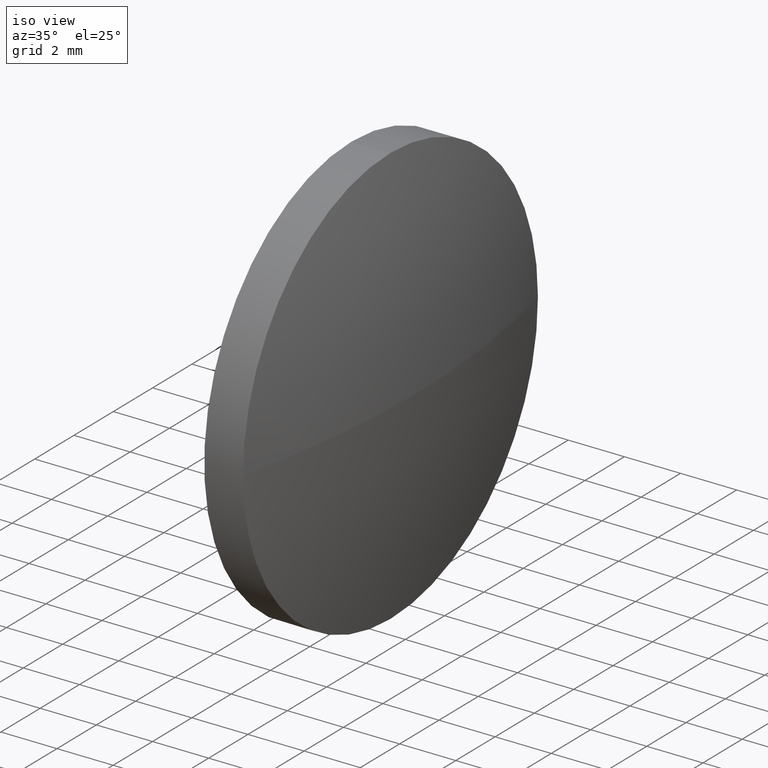
[diagram: clean part render]
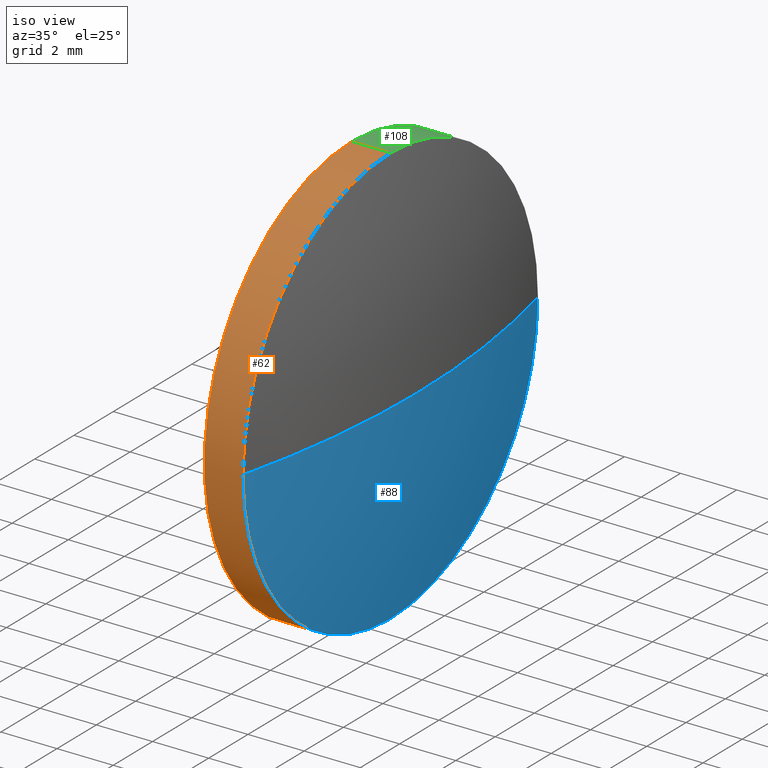
[diagram: same view with three faces highlighted in distinct colors, each labeled with its STEP entity id]
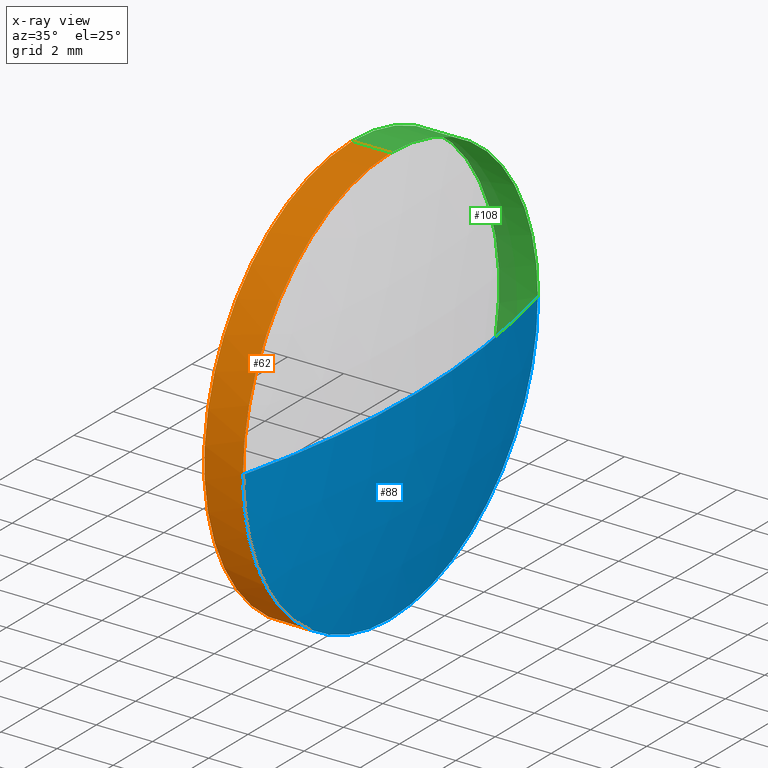
[diagram: x-ray of the same camera — body ghosted, the three highlighted faces saturated]
A machine part, iso view with three faces highlighted in distinct colors.
The next image is the same camera in x-ray (body ghosted, the three faces saturated) — at least one of them is partly hidden behind the body in this view.
Their STEP definitions:

[orange] entity #62 — the highlighted cylindrical surface (partial cylindrical patch) has radius 7.5 mm, axis along (-1, -0, -0).
#9 = DIRECTION ( 'NONE',  ( -1.000000000000000000, -0.0000000000000000000, -0.0000000000000000000 ) ) ;
#17 = ORIENTED_EDGE ( 'NONE', *, *, #63, .F. ) ;
#22 = DIRECTION ( 'NONE',  ( 0.0000000000000000000, 0.0000000000000000000, 1.000000000000000000 ) ) ;
#26 = DIRECTION ( 'NONE',  ( -1.000000000000000000, -0.0000000000000000000, -0.0000000000000000000 ) ) ;
#31 = LINE ( 'NONE', #120, #157 ) ;
#35 = CARTESIAN_POINT ( 'NONE',  ( 561.2280030828359300, 62.85047557403811400, 0.0000000000000000000 ) ) ;
#36 = CARTESIAN_POINT ( 'NONE',  ( 559.8480030828359300, 70.35047557403802900, 7.499999999999992900 ) ) ;
#38 = DIRECTION ( 'NONE',  ( 0.0000000000000000000, 0.0000000000000000000, 1.000000000000000000 ) ) ;
#40 = AXIS2_PLACEMENT_3D ( 'NONE', #42, #86, #38 ) ;
#42 = CARTESIAN_POINT ( 'NONE',  ( 561.2280030828359300, 70.35047557403802900, 0.0000000000000000000 ) ) ;
#46 = ORIENTED_EDGE ( 'NONE', *, *, #124, .T. ) ;
#49 = EDGE_CURVE ( 'NONE', #57, #90, #131, .T. ) ;
#50 = ORIENTED_EDGE ( 'NONE', *, *, #49, .F. ) ;
#52 = VECTOR ( 'NONE', #183, 1000.000000000000000 ) ;
#53 = CARTESIAN_POINT ( 'NONE',  ( 559.8480030828359300, 70.35047557403802900, 0.0000000000000000000 ) ) ;
#54 = CARTESIAN_POINT ( 'NONE',  ( 557.8048355037705100, 70.35047557403802900, -7.499999999999992900 ) ) ;
#56 = DIRECTION ( 'NONE',  ( 0.0000000000000000000, 0.0000000000000000000, 1.000000000000000000 ) ) ;
#57 = VERTEX_POINT ( 'NONE', #147 ) ;
#62 = ADVANCED_FACE ( 'NONE', ( #167 ), #87, .T. ) ;
#63 = EDGE_CURVE ( 'NONE', #90, #98, #140, .T. ) ;
#73 = CIRCLE ( 'NONE', #168, 7.499999999999992900 ) ;
#77 = AXIS2_PLACEMENT_3D ( 'NONE', #53, #9, #130 ) ;
#80 = VERTEX_POINT ( 'NONE', #35 ) ;
#86 = DIRECTION ( 'NONE',  ( -1.000000000000000000, -0.0000000000000000000, -0.0000000000000000000 ) ) ;
#87 = CYLINDRICAL_SURFACE ( 'NONE', #89, 7.499999999999992900 ) ;
#89 = AXIS2_PLACEMENT_3D ( 'NONE', #146, #100, #22 ) ;
#90 = VERTEX_POINT ( 'NONE', #133 ) ;
#96 = VERTEX_POINT ( 'NONE', #132 ) ;
#98 = VERTEX_POINT ( 'NONE', #36 ) ;
#100 = DIRECTION ( 'NONE',  ( -1.000000000000000000, -0.0000000000000000000, -0.0000000000000000000 ) ) ;
#111 = EDGE_CURVE ( 'NONE', #57, #80, #73, .T. ) ;
#120 = CARTESIAN_POINT ( 'NONE',  ( 557.8048355037705100, 70.35047557403802900, 7.499999999999992900 ) ) ;
#122 = DIRECTION ( 'NONE',  ( -1.000000000000000000, -0.0000000000000000000, -0.0000000000000000000 ) ) ;
#124 = EDGE_CURVE ( 'NONE', #96, #98, #31, .T. ) ;
#128 = CIRCLE ( 'NONE', #40, 7.499999999999992900 ) ;
#130 = DIRECTION ( 'NONE',  ( 0.0000000000000000000, 0.0000000000000000000, 1.000000000000000000 ) ) ;
#131 = LINE ( 'NONE', #54, #52 ) ;
#132 = CARTESIAN_POINT ( 'NONE',  ( 561.2280030828359300, 70.35047557403802900, 7.499999999999992900 ) ) ;
#133 = CARTESIAN_POINT ( 'NONE',  ( 559.8480030828359300, 70.35047557403802900, -7.499999999999992900 ) ) ;
#137 = CARTESIAN_POINT ( 'NONE',  ( 561.2280030828359300, 70.35047557403802900, 0.0000000000000000000 ) ) ;
#138 = EDGE_LOOP ( 'NONE', ( #50, #174, #165, #46, #17 ) ) ;
#140 = CIRCLE ( 'NONE', #77, 7.499999999999992900 ) ;
#146 = CARTESIAN_POINT ( 'NONE',  ( 557.8048355037705100, 70.35047557403802900, 0.0000000000000000000 ) ) ;
#147 = CARTESIAN_POINT ( 'NONE',  ( 561.2280030828359300, 70.35047557403802900, -7.499999999999992900 ) ) ;
#157 = VECTOR ( 'NONE', #26, 1000.000000000000000 ) ;
#165 = ORIENTED_EDGE ( 'NONE', *, *, #170, .T. ) ;
#167 = FACE_OUTER_BOUND ( 'NONE', #138, .T. ) ;
#168 = AXIS2_PLACEMENT_3D ( 'NONE', #137, #122, #56 ) ;
#170 = EDGE_CURVE ( 'NONE', #80, #96, #128, .T. ) ;
#174 = ORIENTED_EDGE ( 'NONE', *, *, #111, .T. ) ;
#183 = DIRECTION ( 'NONE',  ( -1.000000000000000000, -0.0000000000000000000, -0.0000000000000000000 ) ) ;

[blue] entity #88 — the highlighted spherical surface has radius 31.0307 mm.
#1 = CIRCLE ( 'NONE', #30, 31.03065217391317500 ) ;
#7 = VERTEX_POINT ( 'NONE', #97 ) ;
#12 = VERTEX_POINT ( 'NONE', #99 ) ;
#16 = ORIENTED_EDGE ( 'NONE', *, *, #102, .F. ) ;
#20 = AXIS2_PLACEMENT_3D ( 'NONE', #172, #114, #145 ) ;
#25 = CARTESIAN_POINT ( 'NONE',  ( 531.1173509089227300, 70.35047557403817100, 0.0000000000000000000 ) ) ;
#28 = AXIS2_PLACEMENT_3D ( 'NONE', #150, #162, #105 ) ;
#30 = AXIS2_PLACEMENT_3D ( 'NONE', #25, #173, #59 ) ;
#35 = CARTESIAN_POINT ( 'NONE',  ( 561.2280030828359300, 62.85047557403811400, 0.0000000000000000000 ) ) ;
#37 = CIRCLE ( 'NONE', #28, 31.03065217391321100 ) ;
#56 = DIRECTION ( 'NONE',  ( 0.0000000000000000000, 0.0000000000000000000, 1.000000000000000000 ) ) ;
#57 = VERTEX_POINT ( 'NONE', #147 ) ;
#59 = DIRECTION ( 'NONE',  ( 0.0000000000000000000, -1.000000000000000000, -1.224646799147353200E-016 ) ) ;
#72 = AXIS2_PLACEMENT_3D ( 'NONE', #81, #148, #119 ) ;
#73 = CIRCLE ( 'NONE', #168, 7.499999999999992900 ) ;
#76 = CIRCLE ( 'NONE', #20, 7.499999999999992900 ) ;
#80 = VERTEX_POINT ( 'NONE', #35 ) ;
#81 = CARTESIAN_POINT ( 'NONE',  ( 531.1173509089227300, 70.35047557403817100, 0.0000000000000000000 ) ) ;
#84 = ORIENTED_EDGE ( 'NONE', *, *, #127, .T. ) ;
#88 = ADVANCED_FACE ( 'NONE', ( #171 ), #186, .T. ) ;
#95 = ORIENTED_EDGE ( 'NONE', *, *, #118, .F. ) ;
#97 = CARTESIAN_POINT ( 'NONE',  ( 561.2280030828359300, 77.85047557403810000, 9.184850993605065100E-016 ) ) ;
#99 = CARTESIAN_POINT ( 'NONE',  ( 562.1480030828360000, 70.35047557403817100, 0.0000000000000000000 ) ) ;
#102 = EDGE_CURVE ( 'NONE', #7, #57, #76, .T. ) ;
#105 = DIRECTION ( 'NONE',  ( -1.000000000000000000, 0.0000000000000000000, 0.0000000000000000000 ) ) ;
#111 = EDGE_CURVE ( 'NONE', #57, #80, #73, .T. ) ;
#114 = DIRECTION ( 'NONE',  ( -1.000000000000000000, -0.0000000000000000000, -0.0000000000000000000 ) ) ;
#118 = EDGE_CURVE ( 'NONE', #12, #7, #1, .T. ) ;
#119 = DIRECTION ( 'NONE',  ( 0.0000000000000000000, -1.000000000000000000, 0.0000000000000000000 ) ) ;
#122 = DIRECTION ( 'NONE',  ( -1.000000000000000000, -0.0000000000000000000, -0.0000000000000000000 ) ) ;
#125 = ORIENTED_EDGE ( 'NONE', *, *, #111, .F. ) ;
#127 = EDGE_CURVE ( 'NONE', #12, #80, #37, .T. ) ;
#135 = EDGE_LOOP ( 'NONE', ( #95, #84, #125, #16 ) ) ;
#137 = CARTESIAN_POINT ( 'NONE',  ( 561.2280030828359300, 70.35047557403802900, 0.0000000000000000000 ) ) ;
#145 = DIRECTION ( 'NONE',  ( 0.0000000000000000000, 0.0000000000000000000, 1.000000000000000000 ) ) ;
#147 = CARTESIAN_POINT ( 'NONE',  ( 561.2280030828359300, 70.35047557403802900, -7.499999999999992900 ) ) ;
#148 = DIRECTION ( 'NONE',  ( 0.0000000000000000000, 0.0000000000000000000, 1.000000000000000000 ) ) ;
#150 = CARTESIAN_POINT ( 'NONE',  ( 531.1173509089227300, 70.35047557403817100, 0.0000000000000000000 ) ) ;
#162 = DIRECTION ( 'NONE',  ( 0.0000000000000000000, 0.0000000000000000000, -1.000000000000000000 ) ) ;
#168 = AXIS2_PLACEMENT_3D ( 'NONE', #137, #122, #56 ) ;
#171 = FACE_OUTER_BOUND ( 'NONE', #135, .T. ) ;
#172 = CARTESIAN_POINT ( 'NONE',  ( 561.2280030828359300, 70.35047557403802900, 0.0000000000000000000 ) ) ;
#173 = DIRECTION ( 'NONE',  ( 0.0000000000000000000, -1.224646799147353200E-016, 1.000000000000000000 ) ) ;
#186 = SPHERICAL_SURFACE ( 'NONE', #72, 31.03065217391317500 ) ;

[green] entity #108 — the highlighted cylindrical surface (partial cylindrical patch) has radius 7.5 mm, axis along (-1, -0, -0).
#5 = AXIS2_PLACEMENT_3D ( 'NONE', #13, #177, #39 ) ;
#7 = VERTEX_POINT ( 'NONE', #97 ) ;
#13 = CARTESIAN_POINT ( 'NONE',  ( 559.8480030828359300, 70.35047557403802900, 0.0000000000000000000 ) ) ;
#15 = AXIS2_PLACEMENT_3D ( 'NONE', #34, #156, #154 ) ;
#20 = AXIS2_PLACEMENT_3D ( 'NONE', #172, #114, #145 ) ;
#26 = DIRECTION ( 'NONE',  ( -1.000000000000000000, -0.0000000000000000000, -0.0000000000000000000 ) ) ;
#31 = LINE ( 'NONE', #120, #157 ) ;
#32 = CARTESIAN_POINT ( 'NONE',  ( 561.2280030828359300, 70.35047557403802900, 0.0000000000000000000 ) ) ;
#33 = DIRECTION ( 'NONE',  ( -1.000000000000000000, -0.0000000000000000000, -0.0000000000000000000 ) ) ;
#34 = CARTESIAN_POINT ( 'NONE',  ( 557.8048355037705100, 70.35047557403802900, 0.0000000000000000000 ) ) ;
#36 = CARTESIAN_POINT ( 'NONE',  ( 559.8480030828359300, 70.35047557403802900, 7.499999999999992900 ) ) ;
#39 = DIRECTION ( 'NONE',  ( 0.0000000000000000000, 0.0000000000000000000, 1.000000000000000000 ) ) ;
#41 = ORIENTED_EDGE ( 'NONE', *, *, #49, .T. ) ;
#44 = CIRCLE ( 'NONE', #5, 7.499999999999992900 ) ;
#49 = EDGE_CURVE ( 'NONE', #57, #90, #131, .T. ) ;
#52 = VECTOR ( 'NONE', #183, 1000.000000000000000 ) ;
#54 = CARTESIAN_POINT ( 'NONE',  ( 557.8048355037705100, 70.35047557403802900, -7.499999999999992900 ) ) ;
#57 = VERTEX_POINT ( 'NONE', #147 ) ;
#65 = ORIENTED_EDGE ( 'NONE', *, *, #124, .F. ) ;
#68 = EDGE_CURVE ( 'NONE', #96, #7, #143, .T. ) ;
#69 = FACE_OUTER_BOUND ( 'NONE', #136, .T. ) ;
#76 = CIRCLE ( 'NONE', #20, 7.499999999999992900 ) ;
#90 = VERTEX_POINT ( 'NONE', #133 ) ;
#96 = VERTEX_POINT ( 'NONE', #132 ) ;
#97 = CARTESIAN_POINT ( 'NONE',  ( 561.2280030828359300, 77.85047557403810000, 9.184850993605065100E-016 ) ) ;
#98 = VERTEX_POINT ( 'NONE', #36 ) ;
#102 = EDGE_CURVE ( 'NONE', #7, #57, #76, .T. ) ;
#106 = ORIENTED_EDGE ( 'NONE', *, *, #102, .T. ) ;
#108 = ADVANCED_FACE ( 'NONE', ( #69 ), #153, .T. ) ;
#114 = DIRECTION ( 'NONE',  ( -1.000000000000000000, -0.0000000000000000000, -0.0000000000000000000 ) ) ;
#120 = CARTESIAN_POINT ( 'NONE',  ( 557.8048355037705100, 70.35047557403802900, 7.499999999999992900 ) ) ;
#124 = EDGE_CURVE ( 'NONE', #96, #98, #31, .T. ) ;
#131 = LINE ( 'NONE', #54, #52 ) ;
#132 = CARTESIAN_POINT ( 'NONE',  ( 561.2280030828359300, 70.35047557403802900, 7.499999999999992900 ) ) ;
#133 = CARTESIAN_POINT ( 'NONE',  ( 559.8480030828359300, 70.35047557403802900, -7.499999999999992900 ) ) ;
#134 = AXIS2_PLACEMENT_3D ( 'NONE', #32, #33, #155 ) ;
#136 = EDGE_LOOP ( 'NONE', ( #106, #41, #163, #65, #179 ) ) ;
#142 = EDGE_CURVE ( 'NONE', #98, #90, #44, .T. ) ;
#143 = CIRCLE ( 'NONE', #134, 7.499999999999992900 ) ;
#145 = DIRECTION ( 'NONE',  ( 0.0000000000000000000, 0.0000000000000000000, 1.000000000000000000 ) ) ;
#147 = CARTESIAN_POINT ( 'NONE',  ( 561.2280030828359300, 70.35047557403802900, -7.499999999999992900 ) ) ;
#153 = CYLINDRICAL_SURFACE ( 'NONE', #15, 7.499999999999992900 ) ;
#154 = DIRECTION ( 'NONE',  ( 0.0000000000000000000, 0.0000000000000000000, 1.000000000000000000 ) ) ;
#155 = DIRECTION ( 'NONE',  ( 0.0000000000000000000, 0.0000000000000000000, 1.000000000000000000 ) ) ;
#156 = DIRECTION ( 'NONE',  ( -1.000000000000000000, -0.0000000000000000000, -0.0000000000000000000 ) ) ;
#157 = VECTOR ( 'NONE', #26, 1000.000000000000000 ) ;
#163 = ORIENTED_EDGE ( 'NONE', *, *, #142, .F. ) ;
#172 = CARTESIAN_POINT ( 'NONE',  ( 561.2280030828359300, 70.35047557403802900, 0.0000000000000000000 ) ) ;
#177 = DIRECTION ( 'NONE',  ( -1.000000000000000000, -0.0000000000000000000, -0.0000000000000000000 ) ) ;
#179 = ORIENTED_EDGE ( 'NONE', *, *, #68, .T. ) ;
#183 = DIRECTION ( 'NONE',  ( -1.000000000000000000, -0.0000000000000000000, -0.0000000000000000000 ) ) ;